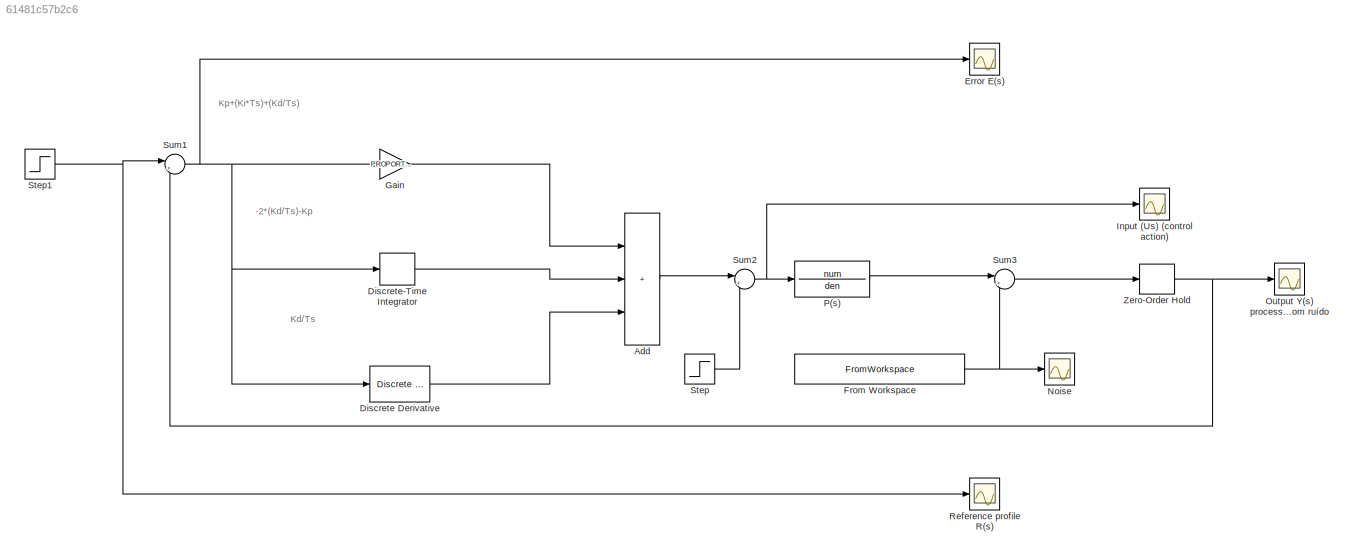
MODEL slx_61481c57b2c6
KIND model
CONFIG AbsTol = auto
CONFIG EnableMultiTasking = off
CONFIG FixedStep = auto
CONFIG MaxStep = auto
CONFIG MinStep = auto
CONFIG RelTol = 1e-3
CONFIG SampleTimeConstraint = Unconstrained
CONFIG SolverName = VariableStepAuto
CONFIG StartTime = 0.0
CONFIG StopTime = 30
BLOCK [Sum] Add
  IconShape = rectangular
  Inputs = +++
  Ports = [3, 1]
BLOCK [Reference] Discrete Derivative  REF=simulink/Discrete/Discrete Derivative
  Ports = [1, 1]
  SourceBlock = simulink/Discrete/Discrete Derivative
  SourceProductBaseCode = SL
  SourceType = Discrete Derivative
BLOCK [DiscreteIntegrator] Discrete-Time Integrator
  ICPrevOutput = DiscIntNeverNeededParam
  ICPrevScaledInput = DiscIntNeverNeededParam
  InitialConditionSetting = Auto
  Ports = [1, 1]
  SampleTime = sample_time
  gainval = INTEGRAL_GAIN
BLOCK [Scope] Error E(s)
  Floating = off
  NumInputPorts = 1
  Ports = [1]
  ScopeSpecificationString = Simulink.scopes.TimeScopeBlockCfg('CurrentConfiguration', extmgr.ConfigurationSet(extmgr.Configuration('Core','General UI',true),extmgr.Configuration('Core','Source UI',true),extmgr.Configuration('Sources','WiredSimulink',true,'DataLogging',true,'DataLoggingVariableName','DiscreteError','DataLoggingLimitDataPoints',true,'DataLoggingSaveFormat','Array','DataLoggingDecimation','1','DataLoggingDecima...<+1735ch>
BLOCK [FromWorkspace] From Workspace
  SampleTime = sample_time
  VariableName = ruido_simulation_input
BLOCK [Gain] Gain
  Gain = PROPORTIONAL_GAIN
BLOCK [Scope] Input (Us) (control action)
  Floating = off
  NumInputPorts = 1
  Ports = [1]
  ScopeSpecificationString = Simulink.scopes.TimeScopeBlockCfg('CurrentConfiguration', extmgr.ConfigurationSet(extmgr.Configuration('Core','General UI',true),extmgr.Configuration('Core','Source UI',true),extmgr.Configuration('Sources','WiredSimulink',true,'DataLogging',true,'DataLoggingVariableName','DiscreteInput','DataLoggingSaveFormat','Array','DataLoggingDecimation','1','DataLoggingDecimateData',true),extmgr.Configuration...<+1711ch>
BLOCK [Scope] Noise
  Floating = off
  NumInputPorts = 1
  Ports = [1]
  ScopeSpecificationString = Simulink.scopes.TimeScopeBlockCfg('CurrentConfiguration', extmgr.ConfigurationSet(extmgr.Configuration('Core','General UI',true),extmgr.Configuration('Core','Source UI',true),extmgr.Configuration('Sources','WiredSimulink',true,'DataLogging',true,'DataLoggingLimitDataPoints',true,'DataLoggingSaveFormat','Array','DataLoggingDecimation','1','DataLoggingDecimateData',true,'DataLoggingVariableName','Di...<+1696ch>
BLOCK [Scope] Output Y(s) processo com ruído
  Floating = off
  NumInputPorts = 1
  Ports = [1]
  ScopeSpecificationString = Simulink.scopes.TimeScopeBlockCfg('CurrentConfiguration', extmgr.ConfigurationSet(extmgr.Configuration('Core','General UI',true),extmgr.Configuration('Core','Source UI',true),extmgr.Configuration('Sources','WiredSimulink',true,'DataLogging',true,'DataLoggingLimitDataPoints',true,'DataLoggingSaveFormat','Array','DataLoggingDecimation','1','DataLoggingDecimateData',true,'DataLoggingVariableName','Di...<+1743ch>
BLOCK [TransferFcn] P(s)
  Denominator = den
  Numerator = num
BLOCK [Scope] Reference profile R(s)
  Floating = off
  NumInputPorts = 1
  Ports = [1]
  ScopeSpecificationString = Simulink.scopes.TimeScopeBlockCfg('CurrentConfiguration', extmgr.ConfigurationSet(extmgr.Configuration('Core','General UI',true),extmgr.Configuration('Core','Source UI',true),extmgr.Configuration('Sources','WiredSimulink',true,'DataLogging',true,'DataLoggingLimitDataPoints',true,'DataLoggingSaveFormat','Array','DataLoggingDecimation','1','DataLoggingDecimateData',true,'DataLoggingVariableName','Di...<+1657ch>
BLOCK [Step] Step
  After = input_noise_amplitude
  SampleTime = sample_time
  Time = input_noise_time
BLOCK [Step] Step1
  After = reference_amplitude
  SampleTime = 0
  Time = 0
BLOCK [Sum] Sum1
  Inputs = |+-
  Ports = [2, 1]
BLOCK [Sum] Sum2
  Inputs = |++
  Ports = [2, 1]
BLOCK [Sum] Sum3
  Inputs = |++
  Ports = [2, 1]
BLOCK [ZeroOrderHold] Zero-Order Hold
  SampleTime = sample_time
ANNOTATION (root): -2*(Kd/Ts)-Kp
ANNOTATION (root): Kd/Ts
ANNOTATION (root): Kp+(Ki*Ts)+(Kd/Ts)
LINE Add:1 -> Sum2:1
LINE Discrete Derivative:1 -> Add:3
LINE Discrete-Time Integrator:1 -> Add:2
NET From Workspace:1 -> Noise:1, Sum3:2
LINE Gain:1 -> Add:1
LINE P(s):1 -> Sum3:1
NET Step1:1 -> Reference profile R(s):1, Sum1:1
LINE Step:1 -> Sum2:2
NET Sum1:1 -> Discrete Derivative:1, Discrete-Time Integrator:1, Error E(s):1, Gain:1
NET Sum2:1 -> Input (Us) (control action):1, P(s):1
LINE Sum3:1 -> Zero-Order Hold:1
NET Zero-Order Hold:1 -> Output Y(s) processo com ruído:1, Sum1:2
note: NET lines group one-source signal fan-out (src -> all destinations, sorted); 1:1 wires keep LINE
